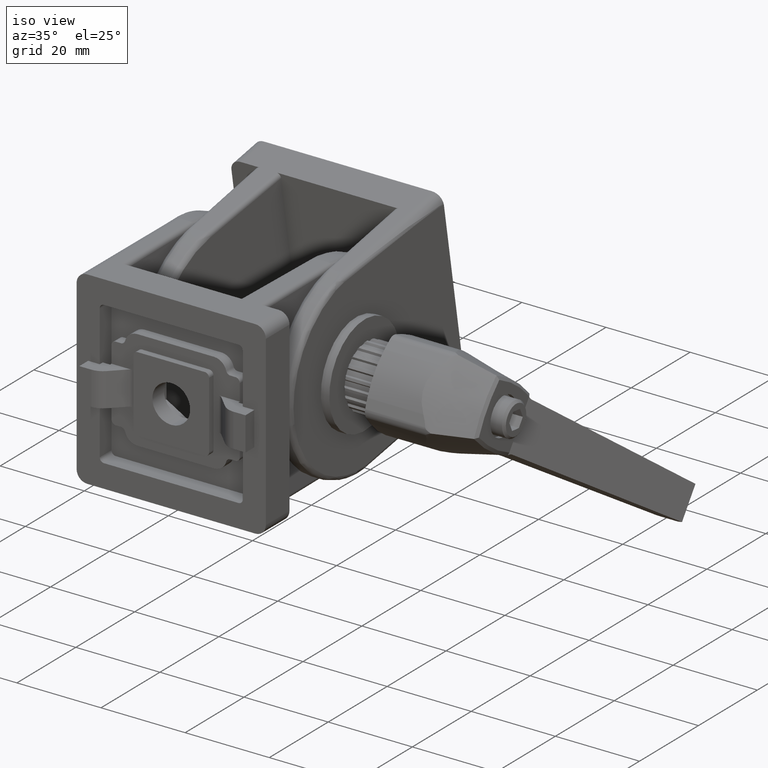
[diagram: clean part render]
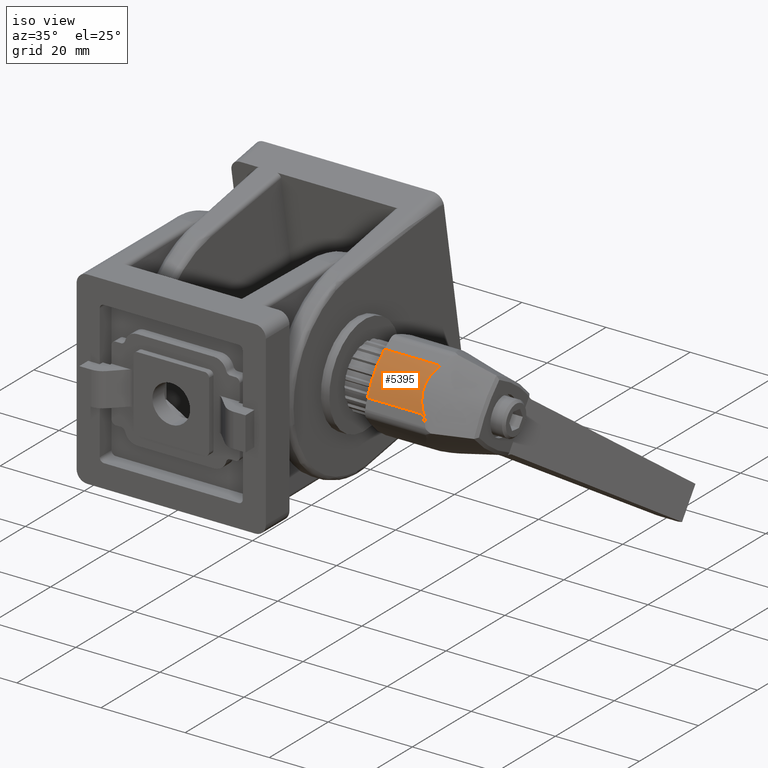
[diagram: same view with one face highlighted and labeled with its STEP entity id]
A machine part, iso view. The second image highlights one B-rep face of the part: STEP entity #5395.
In plain terms, the highlighted cylindrical surface (partial cylindrical patch) has radius 18.2471 mm, axis along (1, 0, 0).
Its self-contained STEP definition (entity closure, byte-faithful):
#511=LINE('',#10246,#942);
#512=LINE('',#10248,#943);
#942=VECTOR('',#7406,13.2976510486606);
#943=VECTOR('',#7409,13.2976510486607);
#1285=CYLINDRICAL_SURFACE('',#5931,18.2470957524429);
#1556=FACE_OUTER_BOUND('',#1885,.T.);
#1885=EDGE_LOOP('',(#5003,#5004,#5005,#5006));
#2071=CIRCLE('',#5648,18.2470957524429);
#2245=B_SPLINE_CURVE_WITH_KNOTS('',3,(#10217,#10218,#10219,#10220,#10221,
#10222,#10223,#10224,#10225,#10226,#10227,#10228,#10229,#10230),
 .UNSPECIFIED.,.F.,.F.,(4,2,2,2,2,2,4),(-3.65298499393777,-3.59109445330903,
-3.35956152987034,-3.12802860643165,-2.89649568299296,-2.66496275955427,
-2.60307221892553),.UNSPECIFIED.);
#2474=VERTEX_POINT('',#9119);
#2475=VERTEX_POINT('',#9121);
#2764=VERTEX_POINT('',#10212);
#2765=VERTEX_POINT('',#10216);
#3106=EDGE_CURVE('',#2474,#2475,#2071,.F.);
#3540=EDGE_CURVE('',#2765,#2764,#2245,.T.);
#3543=EDGE_CURVE('',#2764,#2475,#511,.T.);
#3544=EDGE_CURVE('',#2765,#2474,#512,.T.);
#5003=ORIENTED_EDGE('',*,*,#3544,.F.);
#5004=ORIENTED_EDGE('',*,*,#3540,.T.);
#5005=ORIENTED_EDGE('',*,*,#3543,.T.);
#5006=ORIENTED_EDGE('',*,*,#3106,.F.);
#5395=ADVANCED_FACE('',(#1556),#1285,.T.);
#5648=AXIS2_PLACEMENT_3D('',#9122,#6614,#6615);
#5931=AXIS2_PLACEMENT_3D('',#10247,#7407,#7408);
#6614=DIRECTION('center_axis',(0.,1.,0.));
#6615=DIRECTION('ref_axis',(-1.,0.,0.));
#7406=DIRECTION('',(0.,-1.,0.));
#7407=DIRECTION('center_axis',(0.,1.,0.));
#7408=DIRECTION('ref_axis',(0.,0.,-1.));
#7409=DIRECTION('',(0.,-1.,0.));
#9119=CARTESIAN_POINT('',(-9.28915109717477,8.,5.04346605303279));
#9121=CARTESIAN_POINT('',(-9.28915109717477,8.,-5.0434660530328));
#9122=CARTESIAN_POINT('Origin',(8.24709575244287,8.,-8.67361737988404E-16));
#10212=CARTESIAN_POINT('',(-9.28915109717476,21.2976510486606,-5.04346605303281));
#10216=CARTESIAN_POINT('',(-9.28915109717476,21.2976510486607,5.04346605303279));
#10217=CARTESIAN_POINT('Ctrl Pts',(-9.28915109717477,21.2976510486606,5.04346605303288));
#10218=CARTESIAN_POINT('Ctrl Pts',(-9.34100477500819,21.1875245847006,4.8631696289099));
#10219=CARTESIAN_POINT('Ctrl Pts',(-9.3907089780112,21.0820816027187,4.67987067656354));
#10220=CARTESIAN_POINT('Ctrl Pts',(-9.61482888820569,20.6070730658071,3.79786834722391));
#10221=CARTESIAN_POINT('Ctrl Pts',(-9.75745732877799,20.3061287385096,3.06172084799632));
#10222=CARTESIAN_POINT('Ctrl Pts',(-9.95014259873188,19.9000600944279,1.54873581925546));
#10223=CARTESIAN_POINT('Ctrl Pts',(-10.,19.7952953698904,0.771776411462294));
#10224=CARTESIAN_POINT('Ctrl Pts',(-10.,19.7952953698904,-0.771776411462303));
#10225=CARTESIAN_POINT('Ctrl Pts',(-9.95014259873188,19.9000600944278,-1.54873581925547));
#10226=CARTESIAN_POINT('Ctrl Pts',(-9.75745732877799,20.3061287385095,-3.06172084799633));
#10227=CARTESIAN_POINT('Ctrl Pts',(-9.61482888820569,20.6070730658071,-3.79786834722391));
#10228=CARTESIAN_POINT('Ctrl Pts',(-9.3907089780112,21.0820816027188,-4.67987067656353));
#10229=CARTESIAN_POINT('Ctrl Pts',(-9.3410047750082,21.1875245847006,-4.86316962890988));
#10230=CARTESIAN_POINT('Ctrl Pts',(-9.28915109717478,21.2976510486605,-5.04346605303286));
#10246=CARTESIAN_POINT('',(-9.28915109717477,21.2976510486606,-5.0434660530328));
#10247=CARTESIAN_POINT('Origin',(8.24709575244287,43.1,-8.67361737988404E-16));
#10248=CARTESIAN_POINT('',(-9.28915109717477,21.2976510486607,5.04346605303279));